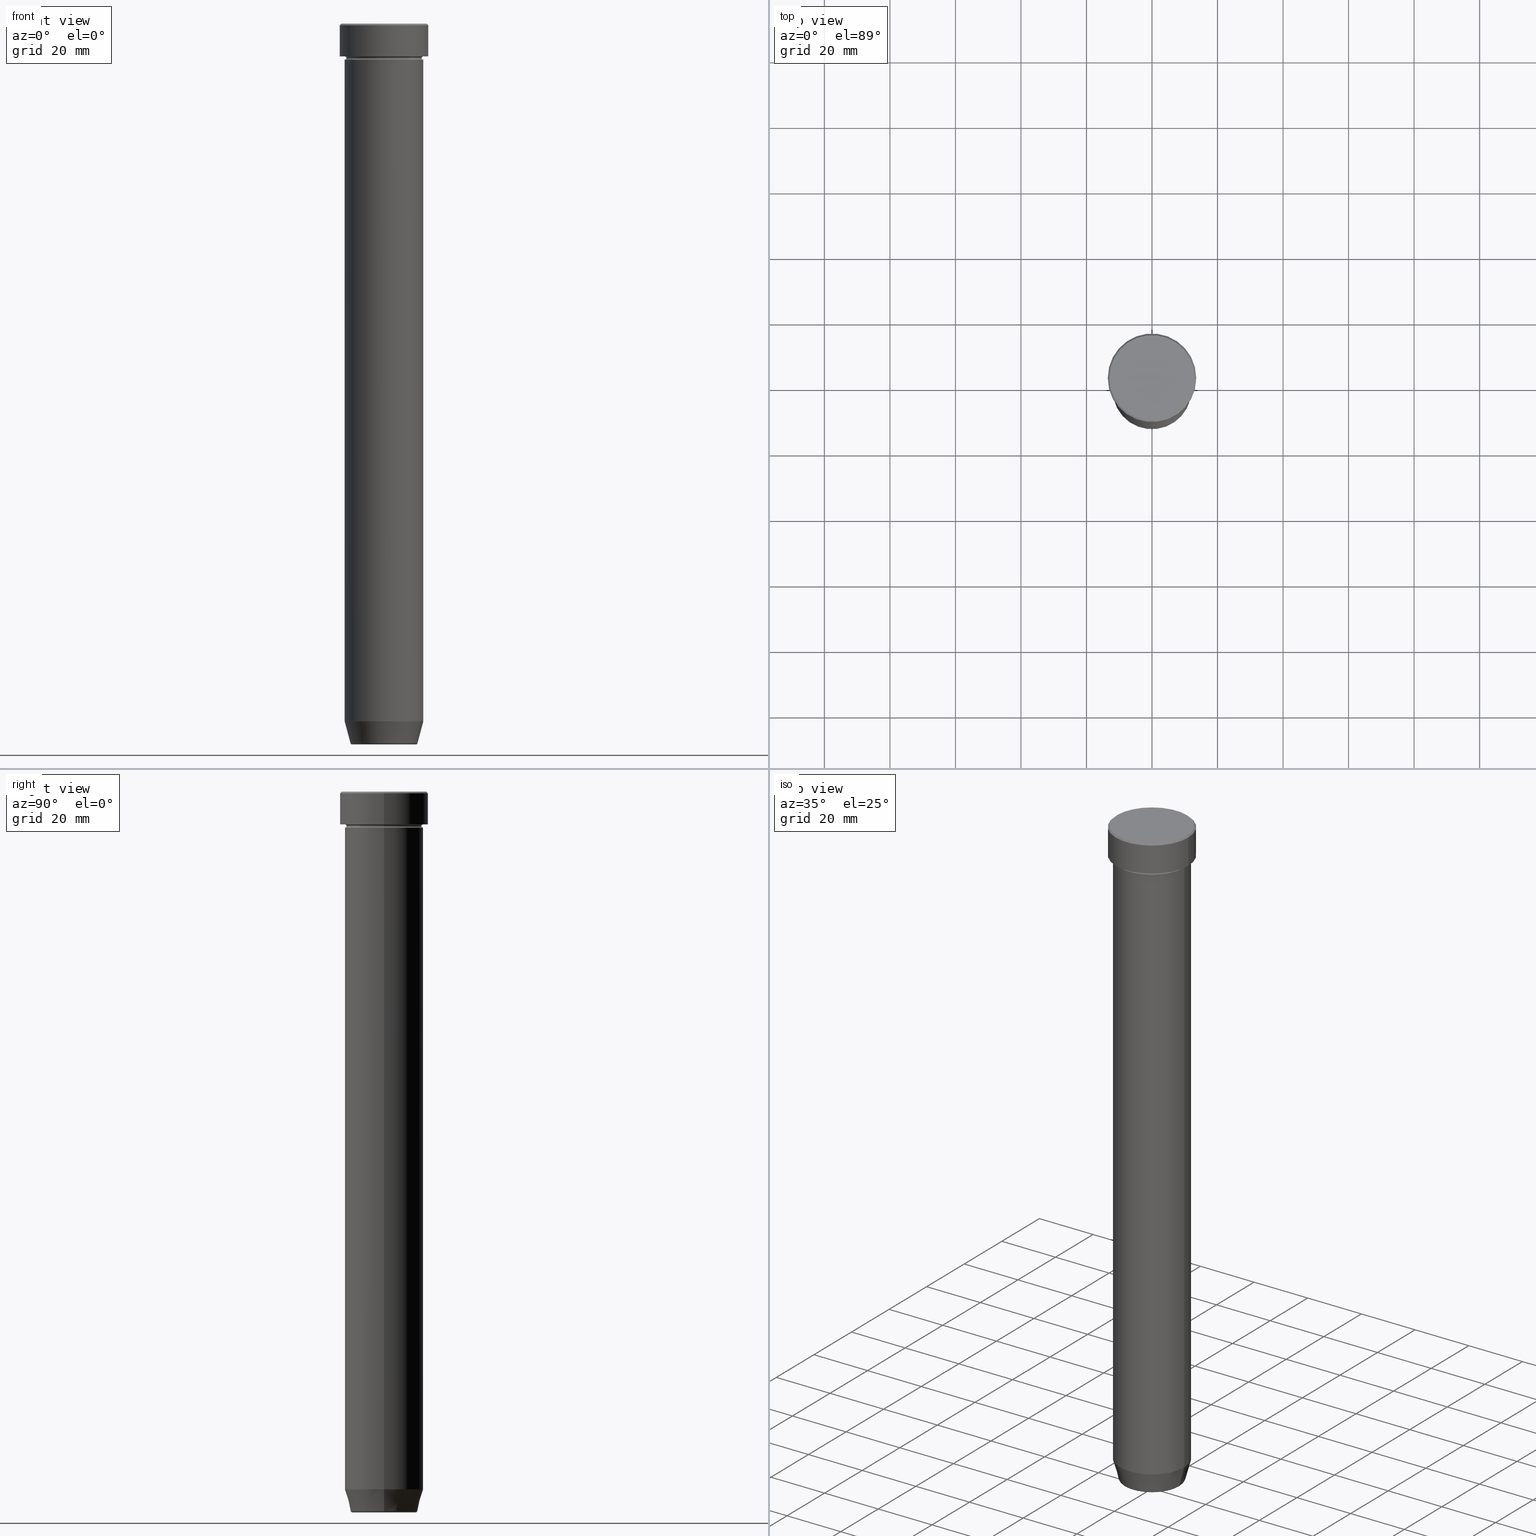
[diagram: canonical four-view strip — front | top / right | iso, engineering-drawing reading convention]
A machine part, canonical four-view strip (front | top / right | iso — engineering-drawing reading convention). The complete STEP part file that produces these views, byte-faithful:
ISO-10303-21;
HEADER;
FILE_DESCRIPTION (( 'STEP AP203' ),
    '1' );
FILE_NAME ('7fe7.STEP',
    '2024-01-02T19:18:45',
    ( '' ),
    ( '' ),
    'SwSTEP 2.0',
    'SolidWorks 2019',
    '' );
FILE_SCHEMA (( 'CONFIG_CONTROL_DESIGN' ));
ENDSEC;

DATA;
#1 = DIRECTION ( 'NONE',  ( 1.000000000000000000, 0.000000000000000000, 0.000000000000000000 ) ) ;
#2 = LOCAL_TIME ( 20, 18, 45.00000000000000000, #33 ) ;
#3 = EDGE_CURVE ( 'NONE', #557, #589, #338, .T. ) ;
#4 = CARTESIAN_POINT ( 'NONE',  ( 0.000000000000000000, 0.000000000000000000, 0.000000000000000000 ) ) ;
#5 = APPROVAL ( #273, 'NEUR�EN�' ) ;
#6 = CIRCLE ( 'NONE', #506, 12.99999999999999645 ) ;
#7 = PLANE ( 'NONE',  #251 ) ;
#8 = EDGE_LOOP ( 'NONE', ( #587, #66, #198, #221 ) ) ;
#9 = EDGE_CURVE ( 'NONE', #399, #486, #432, .T. ) ;
#10 = DIRECTION ( 'NONE',  ( -1.000000000000000000, 0.000000000000000000, 0.000000000000000000 ) ) ;
#11 = CC_DESIGN_APPROVAL ( #5, ( #454 ) ) ;
#12 = CARTESIAN_POINT ( 'NONE',  ( -12.00000000000000000, 0.000000000000000000, -10.49999999999999822 ) ) ;
#13 = CIRCLE ( 'NONE', #351, 12.00000000000000000 ) ;
#14 = CARTESIAN_POINT ( 'NONE',  ( 0.000000000000000000, 0.000000000000000000, -10.49999999999999822 ) ) ;
#15 = CARTESIAN_POINT ( 'NONE',  ( 12.99999999999999645, 1.592040838891558701E-15, 0.000000000000000000 ) ) ;
#16 = VERTEX_POINT ( 'NONE', #71 ) ;
#17 = AXIS2_PLACEMENT_3D ( 'NONE', #525, #55, #421 ) ;
#18 = CARTESIAN_POINT ( 'NONE',  ( 0.000000000000000000, 0.000000000000000000, -27.00000000000000000 ) ) ;
#19 = LINE ( 'NONE', #250, #311 ) ;
#20 = ADVANCED_FACE ( 'NONE', ( #265 ), #444, .T. ) ;
#21 = CONICAL_SURFACE ( 'NONE', #98, 10.12435565298213369, 0.2617993877991502405 ) ;
#22 = CARTESIAN_POINT ( 'NONE',  ( 0.000000000000000000, 0.000000000000000000, 0.000000000000000000 ) ) ;
#23 = ORIENTED_EDGE ( 'NONE', *, *, #150, .T. ) ;
#24 = DIRECTION ( 'NONE',  ( -0.000000000000000000, -0.000000000000000000, 1.000000000000000000 ) ) ;
#25 = DIRECTION ( 'NONE',  ( 0.2588190451025214611, 0.000000000000000000, 0.9659258262890679791 ) ) ;
#26 = AXIS2_PLACEMENT_3D ( 'NONE', #500, #465, #559 ) ;
#27 = ORIENTED_EDGE ( 'NONE', *, *, #433, .T. ) ;
#28 = CARTESIAN_POINT ( 'NONE',  ( 0.000000000000000000, 0.000000000000000000, 0.000000000000000000 ) ) ;
#29 = FACE_OUTER_BOUND ( 'NONE', #467, .T. ) ;
#30 = DIRECTION ( 'NONE',  ( 1.000000000000000000, 0.000000000000000000, 0.000000000000000000 ) ) ;
#31 = EDGE_CURVE ( 'NONE', #478, #272, #513, .T. ) ;
#32 = ORIENTED_EDGE ( 'NONE', *, *, #534, .T. ) ;
#33 = COORDINATED_UNIVERSAL_TIME_OFFSET ( 1, 0, .AHEAD. ) ;
#34 = VERTEX_POINT ( 'NONE', #163 ) ;
#35 = DIRECTION ( 'NONE',  ( -1.000000000000000000, 1.224646799147353454E-16, 0.000000000000000000 ) ) ;
#36 = DIRECTION ( 'NONE',  ( -1.000000000000000000, 0.000000000000000000, 0.000000000000000000 ) ) ;
#37 = DIRECTION ( 'NONE',  ( -0.000000000000000000, -0.000000000000000000, 1.000000000000000000 ) ) ;
#38 = VERTEX_POINT ( 'NONE', #85 ) ;
#39 = ORIENTED_EDGE ( 'NONE', *, *, #150, .F. ) ;
#40 = DIRECTION ( 'NONE',  ( -1.000000000000000000, 1.224646799147353454E-16, 0.000000000000000000 ) ) ;
#41 = ORIENTED_EDGE ( 'NONE', *, *, #459, .F. ) ;
#42 = VECTOR ( 'NONE', #212, 1000.000000000000000 ) ;
#43 = EDGE_CURVE ( 'NONE', #499, #34, #130, .T. ) ;
#44 = CC_DESIGN_APPROVAL ( #416, ( #526 ) ) ;
#45 = SECURITY_CLASSIFICATION_LEVEL ( 'unclassified' ) ;
#46 = DIRECTION ( 'NONE',  ( -1.000000000000000000, 0.000000000000000000, 0.000000000000000000 ) ) ;
#47 = ORIENTED_EDGE ( 'NONE', *, *, #519, .F. ) ;
#48 = EDGE_LOOP ( 'NONE', ( #32, #185, #83, #415 ) ) ;
#49 = DIRECTION ( 'NONE',  ( 1.000000000000000000, 0.000000000000000000, 0.000000000000000000 ) ) ;
#50 = DIRECTION ( 'NONE',  ( 1.000000000000000000, 0.000000000000000000, 0.000000000000000000 ) ) ;
#51 = EDGE_CURVE ( 'NONE', #453, #457, #392, .T. ) ;
#52 = DIRECTION ( 'NONE',  ( 1.000000000000000000, 0.000000000000000000, 0.000000000000000000 ) ) ;
#53 = AXIS2_PLACEMENT_3D ( 'NONE', #446, #219, #172 ) ;
#54 = CARTESIAN_POINT ( 'NONE',  ( 0.000000000000000000, 0.000000000000000000, -27.00000000000000000 ) ) ;
#55 = DIRECTION ( 'NONE',  ( 0.000000000000000000, 0.000000000000000000, -1.000000000000000000 ) ) ;
#56 = DIRECTION ( 'NONE',  ( -0.000000000000000000, -0.000000000000000000, 1.000000000000000000 ) ) ;
#57 = EDGE_CURVE ( 'NONE', #589, #218, #129, .T. ) ;
#58 = ORIENTED_EDGE ( 'NONE', *, *, #51, .F. ) ;
#59 = CARTESIAN_POINT ( 'NONE',  ( 13.50000000000000000, 0.000000000000000000, -0.5000000000000091038 ) ) ;
#60 = VECTOR ( 'NONE', #209, 1000.000000000000000 ) ;
#61 = ORIENTED_EDGE ( 'NONE', *, *, #317, .F. ) ;
#62 = ORIENTED_EDGE ( 'NONE', *, *, #57, .T. ) ;
#63 = CARTESIAN_POINT ( 'NONE',  ( -10.12435565298213369, 1.239875974385398152E-15, -220.0000000000000284 ) ) ;
#64 = DIRECTION ( 'NONE',  ( 1.000000000000000000, 0.000000000000000000, 0.000000000000000000 ) ) ;
#65 = EDGE_CURVE ( 'NONE', #352, #557, #73, .T. ) ;
#66 = ORIENTED_EDGE ( 'NONE', *, *, #75, .T. ) ;
#67 = FACE_OUTER_BOUND ( 'NONE', #334, .T. ) ;
#68 = CARTESIAN_POINT ( 'NONE',  ( 0.000000000000000000, 0.000000000000000000, -11.00000000000000000 ) ) ;
#69 = AXIS2_PLACEMENT_3D ( 'NONE', #484, #401, #435 ) ;
#70 = CYLINDRICAL_SURFACE ( 'NONE', #279, 13.50000000000000000 ) ;
#71 = CARTESIAN_POINT ( 'NONE',  ( 13.50000000000000000, 0.000000000000000000, -10.00000000000000000 ) ) ;
#72 = APPROVAL_PERSON_ORGANIZATION ( #542, #5, #315 ) ;
#73 = CIRCLE ( 'NONE', #228, 11.50000000000000000 ) ;
#74 = DIRECTION ( 'NONE',  ( -1.000000000000000000, 0.000000000000000000, 0.000000000000000000 ) ) ;
#75 = EDGE_CURVE ( 'NONE', #103, #499, #569, .T. ) ;
#76 = DIRECTION ( 'NONE',  ( 1.000000000000000000, 0.000000000000000000, 0.000000000000000000 ) ) ;
#77 = ORIENTED_EDGE ( 'NONE', *, *, #459, .T. ) ;
#78 = APPLICATION_PROTOCOL_DEFINITION ( 'international standard', 'config_control_design', 1994, #80 ) ;
#79 = DIRECTION ( 'NONE',  ( 1.224646799147353207E-16, 1.000000000000000000, 0.000000000000000000 ) ) ;
#80 = APPLICATION_CONTEXT ( 'configuration controlled 3d designs of mechanical parts and assemblies' ) ;
#81 = EDGE_LOOP ( 'NONE', ( #560, #596, #117, #541 ) ) ;
#82 = PERSON_AND_ORGANIZATION_ROLE ( 'design_supplier' ) ;
#83 = ORIENTED_EDGE ( 'NONE', *, *, #31, .F. ) ;
#84 = CARTESIAN_POINT ( 'NONE',  ( 0.000000000000000000, 0.000000000000000000, -10.00000000000000000 ) ) ;
#85 = CARTESIAN_POINT ( 'NONE',  ( -12.99999999999999645, 0.000000000000000000, 0.000000000000000000 ) ) ;
#86 = ORIENTED_EDGE ( 'NONE', *, *, #65, .T. ) ;
#87 = DATE_TIME_ROLE ( 'classification_date' ) ;
#88 = MANIFOLD_SOLID_BREP ( 'Zaoblit4', #300 ) ;
#89 = AXIS2_PLACEMENT_3D ( 'NONE', #68, #213, #167 ) ;
#90 = PERSON_AND_ORGANIZATION ( #381, #584 ) ;
#91 = EDGE_CURVE ( 'NONE', #272, #478, #13, .T. ) ;
#92 = ORIENTED_EDGE ( 'NONE', *, *, #424, .F. ) ;
#93 = DIRECTION ( 'NONE',  ( -0.000000000000000000, -0.000000000000000000, 1.000000000000000000 ) ) ;
#94 = CONICAL_SURFACE ( 'NONE', #426, 12.99999999999999645, 0.7853981633974431720 ) ;
#95 = AXIS2_PLACEMENT_3D ( 'NONE', #152, #147, #10 ) ;
#96 = LINE ( 'NONE', #329, #108 ) ;
#97 = CIRCLE ( 'NONE', #390, 9.740692158992656502 ) ;
#98 = AXIS2_PLACEMENT_3D ( 'NONE', #216, #170, #348 ) ;
#99 = ORIENTED_EDGE ( 'NONE', *, *, #31, .T. ) ;
#100 = DATE_AND_TIME ( #362, #522 ) ;
#101 = DIRECTION ( 'NONE',  ( -1.000000000000000000, -1.224646799147353454E-16, 0.000000000000000000 ) ) ;
#102 = CC_DESIGN_PERSON_AND_ORGANIZATION_ASSIGNMENT ( #266, #585, ( #526 ) ) ;
#103 = VERTEX_POINT ( 'NONE', #230 ) ;
#104 = AXIS2_PLACEMENT_3D ( 'NONE', #443, #24, #582 ) ;
#105 = CARTESIAN_POINT ( 'NONE',  ( 0.000000000000000000, 0.000000000000000000, -9.999999999999998224 ) ) ;
#106 = CALENDAR_DATE ( 2024, 2, 1 ) ;
#107 = DIRECTION ( 'NONE',  ( 1.000000000000000000, 0.000000000000000000, 0.000000000000000000 ) ) ;
#108 = VECTOR ( 'NONE', #380, 1000.000000000000000 ) ;
#109 = AXIS2_PLACEMENT_3D ( 'NONE', #419, #151, #1 ) ;
#110 = DATE_AND_TIME ( #106, #592 ) ;
#111 = DIRECTION ( 'NONE',  ( -0.000000000000000000, -0.000000000000000000, 1.000000000000000000 ) ) ;
#112 = AXIS2_PLACEMENT_3D ( 'NONE', #527, #396, #449 ) ;
#113 = ADVANCED_FACE ( 'NONE', ( #417 ), #583, .T. ) ;
#114 = DIRECTION ( 'NONE',  ( -0.000000000000000000, -0.000000000000000000, 1.000000000000000000 ) ) ;
#115 = AXIS2_PLACEMENT_3D ( 'NONE', #549, #138, #40 ) ;
#116 = APPROVAL_PERSON_ORGANIZATION ( #203, #416, #573 ) ;
#117 = ORIENTED_EDGE ( 'NONE', *, *, #57, .F. ) ;
#118 = EDGE_CURVE ( 'NONE', #557, #272, #536, .T. ) ;
#119 = ORIENTED_EDGE ( 'NONE', *, *, #292, .F. ) ;
#120 = DIRECTION ( 'NONE',  ( 0.000000000000000000, 0.000000000000000000, -1.000000000000000000 ) ) ;
#121 = EDGE_LOOP ( 'NONE', ( #27, #175, #41, #577 ) ) ;
#122 = CARTESIAN_POINT ( 'NONE',  ( -12.00000000000000000, 0.000000000000000000, -9.999999999999998224 ) ) ;
#123 = DIRECTION ( 'NONE',  ( 0.000000000000000000, 0.000000000000000000, -1.000000000000000000 ) ) ;
#124 = VECTOR ( 'NONE', #179, 1000.000000000000000 ) ;
#125 = PRODUCT ( '7fe7', '7fe7', '', ( #581 ) ) ;
#126 = AXIS2_PLACEMENT_3D ( 'NONE', #353, #120, #166 ) ;
#127 = ADVANCED_FACE ( 'NONE', ( #312 ), #452, .F. ) ;
#128 = LOCAL_TIME ( 20, 18, 45.00000000000000000, #403 ) ;
#129 = CIRCLE ( 'NONE', #442, 12.00000000000000000 ) ;
#130 = LINE ( 'NONE', #395, #504 ) ;
#131 = ORIENTED_EDGE ( 'NONE', *, *, #184, .F. ) ;
#132 = CARTESIAN_POINT ( 'NONE',  ( 12.00000000000000000, 1.469576158976823947E-15, -10.49999999999999822 ) ) ;
#133 = DIRECTION ( 'NONE',  ( 0.000000000000000000, -0.000000000000000000, 1.000000000000000000 ) ) ;
#134 = TOROIDAL_SURFACE ( 'NONE', #473, 12.00000000000000000, 0.5000000000000000000 ) ;
#135 = EDGE_LOOP ( 'NONE', ( #404, #437, #159, #99 ) ) ;
#136 = ORIENTED_EDGE ( 'NONE', *, *, #424, .T. ) ;
#137 = DIRECTION ( 'NONE',  ( 1.000000000000000000, 0.000000000000000000, 0.000000000000000000 ) ) ;
#138 = DIRECTION ( 'NONE',  ( 1.224646799147353207E-16, 1.000000000000000000, 0.000000000000000000 ) ) ;
#139 = EDGE_CURVE ( 'NONE', #553, #478, #409, .T. ) ;
#140 = CIRCLE ( 'NONE', #182, 0.5000000000000004441 ) ;
#141 = ORIENTED_EDGE ( 'NONE', *, *, #215, .T. ) ;
#142 = AXIS2_PLACEMENT_3D ( 'NONE', #461, #93, #366 ) ;
#143 = CARTESIAN_POINT ( 'NONE',  ( -12.00000000000000000, 1.469576158976823947E-15, 0.000000000000000000 ) ) ;
#144 = CC_DESIGN_PERSON_AND_ORGANIZATION_ASSIGNMENT ( #298, #384, ( #125 ) ) ;
#145 = DIRECTION ( 'NONE',  ( -0.000000000000000000, -0.000000000000000000, 1.000000000000000000 ) ) ;
#146 = CARTESIAN_POINT ( 'NONE',  ( 12.00000000000000000, 0.000000000000000000, -11.00000000000000000 ) ) ;
#147 = DIRECTION ( 'NONE',  ( -0.000000000000000000, -0.000000000000000000, 1.000000000000000000 ) ) ;
#148 = CYLINDRICAL_SURFACE ( 'NONE', #517, 13.50000000000000000 ) ;
#149 = CARTESIAN_POINT ( 'NONE',  ( 0.000000000000000000, 0.000000000000000000, -10.49999999999999822 ) ) ;
#150 = EDGE_CURVE ( 'NONE', #450, #103, #190, .T. ) ;
#151 = DIRECTION ( 'NONE',  ( -0.000000000000000000, -0.000000000000000000, 1.000000000000000000 ) ) ;
#152 = CARTESIAN_POINT ( 'NONE',  ( 0.000000000000000000, 0.000000000000000000, -219.6294095225512706 ) ) ;
#153 = ORIENTED_EDGE ( 'NONE', *, *, #284, .T. ) ;
#154 = EDGE_LOOP ( 'NONE', ( #410, #153 ) ) ;
#155 = APPROVAL_STATUS ( 'not_yet_approved' ) ;
#156 = VECTOR ( 'NONE', #593, 1000.000000000000000 ) ;
#157 = EDGE_CURVE ( 'NONE', #352, #478, #330, .T. ) ;
#158 = CIRCLE ( 'NONE', #319, 13.50000000000000000 ) ;
#159 = ORIENTED_EDGE ( 'NONE', *, *, #157, .T. ) ;
#160 = EDGE_LOOP ( 'NONE', ( #92, #289 ) ) ;
#161 = CARTESIAN_POINT ( 'NONE',  ( 0.000000000000000000, 0.000000000000000000, -27.00000000000000000 ) ) ;
#162 = CARTESIAN_POINT ( 'NONE',  ( 12.00000000000000000, 1.469576158976823947E-15, -9.999999999999998224 ) ) ;
#163 = CARTESIAN_POINT ( 'NONE',  ( 12.00000000000000000, 0.000000000000000000, -213.0000000000000284 ) ) ;
#164 = DIRECTION ( 'NONE',  ( 1.000000000000000000, 0.000000000000000000, 0.000000000000000000 ) ) ;
#165 = ORIENTED_EDGE ( 'NONE', *, *, #389, .F. ) ;
#166 = DIRECTION ( 'NONE',  ( 1.000000000000000000, 0.000000000000000000, 0.000000000000000000 ) ) ;
#167 = DIRECTION ( 'NONE',  ( 1.000000000000000000, 0.000000000000000000, 0.000000000000000000 ) ) ;
#168 = EDGE_CURVE ( 'NONE', #202, #450, #97, .T. ) ;
#169 = ORIENTED_EDGE ( 'NONE', *, *, #168, .T. ) ;
#170 = DIRECTION ( 'NONE',  ( -0.000000000000000000, -0.000000000000000000, 1.000000000000000000 ) ) ;
#171 = ORIENTED_EDGE ( 'NONE', *, *, #372, .F. ) ;
#172 = DIRECTION ( 'NONE',  ( 0.000000000000000000, 0.000000000000000000, -1.000000000000000000 ) ) ;
#173 = AXIS2_PLACEMENT_3D ( 'NONE', #299, #492, #598 ) ;
#174 = UNCERTAINTY_MEASURE_WITH_UNIT (LENGTH_MEASURE( 1.000000000000000082E-05 ), #445, 'distance_accuracy_value', 'NONE');
#175 = ORIENTED_EDGE ( 'NONE', *, *, #570, .T. ) ;
#176 = ORIENTED_EDGE ( 'NONE', *, *, #433, .F. ) ;
#177 = EDGE_CURVE ( 'NONE', #450, #202, #297, .T. ) ;
#178 = AXIS2_PLACEMENT_3D ( 'NONE', #515, #56, #278 ) ;
#179 = DIRECTION ( 'NONE',  ( -0.000000000000000000, -0.000000000000000000, 1.000000000000000000 ) ) ;
#180 = CARTESIAN_POINT ( 'NONE',  ( 0.000000000000000000, 0.000000000000000000, -219.6294095225512706 ) ) ;
#181 = DIRECTION ( 'NONE',  ( 1.000000000000000000, 0.000000000000000000, 0.000000000000000000 ) ) ;
#182 = AXIS2_PLACEMENT_3D ( 'NONE', #350, #532, #296 ) ;
#184 = EDGE_CURVE ( 'NONE', #471, #486, #376, .T. ) ;
#183 = DATE_TIME_ROLE ( 'creation_date' ) ;
#185 = ORIENTED_EDGE ( 'NONE', *, *, #317, .T. ) ;
#186 = CARTESIAN_POINT ( 'NONE',  ( 0.000000000000000000, 0.000000000000000000, 0.000000000000000000 ) ) ;
#187 = VERTEX_POINT ( 'NONE', #578 ) ;
#188 = APPROVAL_ROLE ( '' ) ;
#189 = CIRCLE ( 'NONE', #307, 12.00000000000000000 ) ;
#190 = CIRCLE ( 'NONE', #518, 0.5000000000000004441 ) ;
#191 = DIRECTION ( 'NONE',  ( -0.000000000000000000, -0.000000000000000000, 1.000000000000000000 ) ) ;
#192 = VECTOR ( 'NONE', #574, 1000.000000000000114 ) ;
#193 = DIRECTION ( 'NONE',  ( -1.000000000000000000, 0.000000000000000000, 0.000000000000000000 ) ) ;
#194 = DIRECTION ( 'NONE',  ( 0.000000000000000000, 0.000000000000000000, -1.000000000000000000 ) ) ;
#195 = AXIS2_PLACEMENT_3D ( 'NONE', #132, #407, #101 ) ;
#196 = ADVANCED_FACE ( 'NONE', ( #247 ), #463, .T. ) ;
#197 = CARTESIAN_POINT ( 'NONE',  ( -13.50000000000000000, 1.653273178848926867E-15, -0.5000000000000091038 ) ) ;
#198 = ORIENTED_EDGE ( 'NONE', *, *, #43, .T. ) ;
#199 = FACE_OUTER_BOUND ( 'NONE', #364, .T. ) ;
#200 = AXIS2_PLACEMENT_3D ( 'NONE', #12, #382, #480 ) ;
#201 = EDGE_CURVE ( 'NONE', #16, #486, #393, .T. ) ;
#202 = VERTEX_POINT ( 'NONE', #440 ) ;
#203 = PERSON_AND_ORGANIZATION ( #381, #584 ) ;
#204 = ORIENTED_EDGE ( 'NONE', *, *, #235, .F. ) ;
#205 = ORIENTED_EDGE ( 'NONE', *, *, #519, .T. ) ;
#206 = CALENDAR_DATE ( 2024, 2, 1 ) ;
#207 = PRODUCT_RELATED_PRODUCT_CATEGORY ( 'detail', '', ( #125 ) ) ;
#208 = TOROIDAL_SURFACE ( 'NONE', #240, 12.00000000000000000, 0.5000000000000000000 ) ;
#209 = DIRECTION ( 'NONE',  ( -0.000000000000000000, -0.000000000000000000, 1.000000000000000000 ) ) ;
#210 = AXIS2_PLACEMENT_3D ( 'NONE', #523, #114, #107 ) ;
#211 = DIRECTION ( 'NONE',  ( 1.000000000000000000, 0.000000000000000000, 0.000000000000000000 ) ) ;
#212 = DIRECTION ( 'NONE',  ( -0.000000000000000000, -0.000000000000000000, 1.000000000000000000 ) ) ;
#213 = DIRECTION ( 'NONE',  ( -0.000000000000000000, -0.000000000000000000, 1.000000000000000000 ) ) ;
#214 = EDGE_LOOP ( 'NONE', ( #425, #358, #333, #342 ) ) ;
#215 = EDGE_CURVE ( 'NONE', #505, #471, #19, .T. ) ;
#216 = CARTESIAN_POINT ( 'NONE',  ( 0.000000000000000000, 0.000000000000000000, -220.0000000000000284 ) ) ;
#217 = CARTESIAN_POINT ( 'NONE',  ( 0.000000000000000000, 0.000000000000000000, -27.00000000000000000 ) ) ;
#218 = VERTEX_POINT ( 'NONE', #162 ) ;
#219 = DIRECTION ( 'NONE',  ( 0.000000000000000000, -1.000000000000000000, 0.000000000000000000 ) ) ;
#220 = ADVANCED_FACE ( 'NONE', ( #490 ), #70, .T. ) ;
#221 = ORIENTED_EDGE ( 'NONE', *, *, #243, .F. ) ;
#222 = CARTESIAN_POINT ( 'NONE',  ( 11.50000000000000000, 0.000000000000000000, -10.49999999999999822 ) ) ;
#223 = EDGE_LOOP ( 'NONE', ( #377, #580, #131, #165 ) ) ;
#224 = DIRECTION ( 'NONE',  ( 0.000000000000000000, 0.000000000000000000, -1.000000000000000000 ) ) ;
#225 = COORDINATED_UNIVERSAL_TIME_OFFSET ( 1, 0, .AHEAD. ) ;
#226 = AXIS2_PLACEMENT_3D ( 'NONE', #149, #451, #488 ) ;
#227 = ORIENTED_EDGE ( 'NONE', *, *, #379, .T. ) ;
#228 = AXIS2_PLACEMENT_3D ( 'NONE', #306, #340, #76 ) ;
#229 = FACE_OUTER_BOUND ( 'NONE', #455, .T. ) ;
#230 = CARTESIAN_POINT ( 'NONE',  ( -10.22365507213718416, 1.360806402472382153E-15, -219.6294095225512706 ) ) ;
#231 = CIRCLE ( 'NONE', #95, 10.22365507213718416 ) ;
#232 = DIRECTION ( 'NONE',  ( -0.000000000000000000, -0.000000000000000000, 1.000000000000000000 ) ) ;
#233 = FACE_BOUND ( 'NONE', #256, .T. ) ;
#234 = AXIS2_PLACEMENT_3D ( 'NONE', #217, #347, #402 ) ;
#235 = EDGE_CURVE ( 'NONE', #202, #499, #140, .T. ) ;
#236 = PERSON_AND_ORGANIZATION ( #381, #584 ) ;
#237 = FACE_OUTER_BOUND ( 'NONE', #160, .T. ) ;
#238 = CC_DESIGN_DATE_AND_TIME_ASSIGNMENT ( #308, #87, ( #331 ) ) ;
#239 = EDGE_LOOP ( 'NONE', ( #510, #524 ) ) ;
#240 = AXIS2_PLACEMENT_3D ( 'NONE', #411, #548, #267 ) ;
#241 = CARTESIAN_POINT ( 'NONE',  ( 0.000000000000000000, 0.000000000000000000, 0.000000000000000000 ) ) ;
#242 = APPLICATION_CONTEXT ( 'configuration controlled 3d designs of mechanical parts and assemblies' ) ;
#243 = EDGE_CURVE ( 'NONE', #187, #34, #422, .T. ) ;
#244 = ORIENTED_EDGE ( 'NONE', *, *, #235, .T. ) ;
#245 = CARTESIAN_POINT ( 'NONE',  ( 0.000000000000000000, 0.000000000000000000, -213.0000000000000284 ) ) ;
#246 =( NAMED_UNIT ( * ) PLANE_ANGLE_UNIT ( ) SI_UNIT ( $, .RADIAN. ) );
#247 = FACE_OUTER_BOUND ( 'NONE', #303, .T. ) ;
#248 = ORIENTED_EDGE ( 'NONE', *, *, #157, .F. ) ;
#249 = AXIS2_PLACEMENT_3D ( 'NONE', #375, #561, #374 ) ;
#250 = CARTESIAN_POINT ( 'NONE',  ( -13.50000000000000000, 1.653273178848926867E-15, 0.000000000000000000 ) ) ;
#251 = AXIS2_PLACEMENT_3D ( 'NONE', #514, #194, #280 ) ;
#252 = ORIENTED_EDGE ( 'NONE', *, *, #325, .T. ) ;
#253 = CARTESIAN_POINT ( 'NONE',  ( 0.000000000000000000, 0.000000000000000000, 0.000000000000000000 ) ) ;
#254 = APPROVAL_PERSON_ORGANIZATION ( #236, #258, #188 ) ;
#255 = ADVANCED_FACE ( 'NONE', ( #537 ), #529, .F. ) ;
#256 = EDGE_LOOP ( 'NONE', ( #62, #309 ) ) ;
#257 = DIRECTION ( 'NONE',  ( 0.000000000000000000, 0.000000000000000000, -1.000000000000000000 ) ) ;
#258 = APPROVAL ( #468, 'NEUR�EN�' ) ;
#259 = CIRCLE ( 'NONE', #195, 0.5000000000000004441 ) ;
#260 = DIRECTION ( 'NONE',  ( -1.000000000000000000, 0.000000000000000000, -0.000000000000000000 ) ) ;
#261 = CC_DESIGN_DATE_AND_TIME_ASSIGNMENT ( #100, #183, ( #526 ) ) ;
#262 = ORIENTED_EDGE ( 'NONE', *, *, #168, .F. ) ;
#263 = PERSON_AND_ORGANIZATION_ROLE ( 'classification_officer' ) ;
#264 = ORIENTED_EDGE ( 'NONE', *, *, #177, .T. ) ;
#265 = FACE_OUTER_BOUND ( 'NONE', #154, .T. ) ;
#266 = PERSON_AND_ORGANIZATION ( #381, #584 ) ;
#267 = DIRECTION ( 'NONE',  ( 1.000000000000000000, 0.000000000000000000, 0.000000000000000000 ) ) ;
#268 = CARTESIAN_POINT ( 'NONE',  ( -12.00000000000000000, 1.469576158976823947E-15, -11.00000000000000000 ) ) ;
#269 = PERSON_AND_ORGANIZATION_ROLE ( 'creator' ) ;
#270 = ADVANCED_FACE ( 'NONE', ( #29 ), #508, .T. ) ;
#271 = AXIS2_PLACEMENT_3D ( 'NONE', #180, #145, #562 ) ;
#272 = VERTEX_POINT ( 'NONE', #268 ) ;
#273 = APPROVAL_STATUS ( 'not_yet_approved' ) ;
#274 = LINE ( 'NONE', #554, #436 ) ;
#275 = EDGE_LOOP ( 'NONE', ( #77, #252, #58, #171 ) ) ;
#276 = CARTESIAN_POINT ( 'NONE',  ( -13.50000000000000000, 1.653273178848926867E-15, -10.00000000000000000 ) ) ;
#277 = ADVANCED_FACE ( 'NONE', ( #229 ), #555, .F. ) ;
#278 = DIRECTION ( 'NONE',  ( 1.000000000000000000, 0.000000000000000000, 0.000000000000000000 ) ) ;
#279 = AXIS2_PLACEMENT_3D ( 'NONE', #344, #291, #164 ) ;
#280 = DIRECTION ( 'NONE',  ( -1.000000000000000000, 0.000000000000000000, -0.000000000000000000 ) ) ;
#281 = SHAPE_DEFINITION_REPRESENTATION ( #460, #556 ) ;
#282 = MANIFOLD_SOLID_BREP ( 'Zkosen�1', #528 ) ;
#283 = FACE_OUTER_BOUND ( 'NONE', #48, .T. ) ;
#284 = EDGE_CURVE ( 'NONE', #399, #38, #6, .T. ) ;
#285 = ORIENTED_EDGE ( 'NONE', *, *, #243, .T. ) ;
#286 = ORIENTED_EDGE ( 'NONE', *, *, #118, .T. ) ;
#287 = PLANE ( 'NONE',  #17 ) ;
#288 = CARTESIAN_POINT ( 'NONE',  ( -11.50000000000000000, 1.438959988998139963E-15, -10.49999999999999822 ) ) ;
#289 = ORIENTED_EDGE ( 'NONE', *, *, #302, .F. ) ;
#290 = ORIENTED_EDGE ( 'NONE', *, *, #51, .T. ) ;
#291 = DIRECTION ( 'NONE',  ( -0.000000000000000000, -0.000000000000000000, 1.000000000000000000 ) ) ;
#292 = EDGE_CURVE ( 'NONE', #352, #218, #259, .T. ) ;
#293 = EDGE_LOOP ( 'NONE', ( #597, #365, #313, #227 ) ) ;
#294 = FACE_OUTER_BOUND ( 'NONE', #121, .T. ) ;
#295 = AXIS2_PLACEMENT_3D ( 'NONE', #241, #387, #531 ) ;
#296 = DIRECTION ( 'NONE',  ( 0.000000000000000000, 0.000000000000000000, -1.000000000000000000 ) ) ;
#297 = CIRCLE ( 'NONE', #69, 9.740692158992656502 ) ;
#298 = PERSON_AND_ORGANIZATION ( #381, #584 ) ;
#299 = CARTESIAN_POINT ( 'NONE',  ( 0.000000000000000000, 0.000000000000000000, -10.49999999999999822 ) ) ;
#300 = CLOSED_SHELL ( 'NONE', ( #509, #564, #558, #594, #349, #113, #277, #196 ) ) ;
#301 = CARTESIAN_POINT ( 'NONE',  ( -9.740692158992656502, 1.192890747399007864E-15, -219.5000000000000284 ) ) ;
#302 = EDGE_CURVE ( 'NONE', #505, #16, #533, .T. ) ;
#303 = EDGE_LOOP ( 'NONE', ( #39, #262, #244, #494 ) ) ;
#304 = ORIENTED_EDGE ( 'NONE', *, *, #3, .T. ) ;
#305 = CIRCLE ( 'NONE', #355, 13.50000000000000000 ) ;
#306 = CARTESIAN_POINT ( 'NONE',  ( 0.000000000000000000, 0.000000000000000000, -10.49999999999999822 ) ) ;
#307 = AXIS2_PLACEMENT_3D ( 'NONE', #245, #475, #327 ) ;
#308 = DATE_AND_TIME ( #545, #128 ) ;
#309 = ORIENTED_EDGE ( 'NONE', *, *, #501, .T. ) ;
#310 = CARTESIAN_POINT ( 'NONE',  ( 0.000000000000000000, 0.000000000000000000, 0.000000000000000000 ) ) ;
#311 = VECTOR ( 'NONE', #388, 1000.000000000000000 ) ;
#312 = FACE_OUTER_BOUND ( 'NONE', #81, .T. ) ;
#313 = ORIENTED_EDGE ( 'NONE', *, *, #201, .T. ) ;
#314 = CARTESIAN_POINT ( 'NONE',  ( 0.000000000000000000, 0.000000000000000000, -0.5000000000000091038 ) ) ;
#315 = APPROVAL_ROLE ( '' ) ;
#316 = AXIS2_PLACEMENT_3D ( 'NONE', #84, #320, #137 ) ;
#317 = EDGE_CURVE ( 'NONE', #383, #272, #456, .T. ) ;
#318 = CARTESIAN_POINT ( 'NONE',  ( -12.00000000000000000, 1.469576158976823947E-15, -27.00000000000000000 ) ) ;
#319 = AXIS2_PLACEMENT_3D ( 'NONE', #474, #520, #52 ) ;
#320 = DIRECTION ( 'NONE',  ( -0.000000000000000000, -0.000000000000000000, 1.000000000000000000 ) ) ;
#321 = AXIS2_PLACEMENT_3D ( 'NONE', #18, #489, #211 ) ;
#322 = ORIENTED_EDGE ( 'NONE', *, *, #91, .F. ) ;
#323 = FACE_OUTER_BOUND ( 'NONE', #502, .T. ) ;
#324 = DIRECTION ( 'NONE',  ( 1.000000000000000000, 0.000000000000000000, 0.000000000000000000 ) ) ;
#325 = EDGE_CURVE ( 'NONE', #187, #457, #274, .T. ) ;
#326 = EDGE_LOOP ( 'NONE', ( #546, #286, #448, #248 ) ) ;
#327 = DIRECTION ( 'NONE',  ( 1.000000000000000000, 0.000000000000000000, 0.000000000000000000 ) ) ;
#328 = CIRCLE ( 'NONE', #566, 12.00000000000000000 ) ;
#329 = CARTESIAN_POINT ( 'NONE',  ( -12.99999999999999645, 0.000000000000000000, 0.000000000000000000 ) ) ;
#330 = CIRCLE ( 'NONE', #53, 0.5000000000000004441 ) ;
#331 = SECURITY_CLASSIFICATION ( '', '', #45 ) ;
#332 = CARTESIAN_POINT ( 'NONE',  ( 12.99999999999999645, 1.622657008870242882E-15, 0.000000000000000000 ) ) ;
#333 = ORIENTED_EDGE ( 'NONE', *, *, #389, .T. ) ;
#334 = EDGE_LOOP ( 'NONE', ( #290, #205 ) ) ;
#335 = COORDINATED_UNIVERSAL_TIME_OFFSET ( 1, 0, .AHEAD. ) ;
#336 = LOCAL_TIME ( 20, 18, 45.00000000000000000, #335 ) ;
#337 =( NAMED_UNIT ( * ) SI_UNIT ( $, .STERADIAN. ) SOLID_ANGLE_UNIT ( ) );
#338 = CIRCLE ( 'NONE', #200, 0.5000000000000004441 ) ;
#339 = DIRECTION ( 'NONE',  ( -0.000000000000000000, -0.000000000000000000, 1.000000000000000000 ) ) ;
#340 = DIRECTION ( 'NONE',  ( -0.000000000000000000, -0.000000000000000000, 1.000000000000000000 ) ) ;
#341 = ADVANCED_FACE ( 'NONE', ( #591 ), #94, .T. ) ;
#342 = ORIENTED_EDGE ( 'NONE', *, *, #379, .F. ) ;
#343 = CYLINDRICAL_SURFACE ( 'NONE', #576, 12.00000000000000000 ) ;
#344 = CARTESIAN_POINT ( 'NONE',  ( 0.000000000000000000, 0.000000000000000000, 0.000000000000000000 ) ) ;
#345 = CARTESIAN_POINT ( 'NONE',  ( 12.00000000000000000, 0.000000000000000000, -27.00000000000000000 ) ) ;
#346 = CARTESIAN_POINT ( 'NONE',  ( 0.000000000000000000, 0.000000000000000000, -219.5000000000000284 ) ) ;
#347 = DIRECTION ( 'NONE',  ( -0.000000000000000000, -0.000000000000000000, 1.000000000000000000 ) ) ;
#348 = DIRECTION ( 'NONE',  ( 1.000000000000000000, 0.000000000000000000, 0.000000000000000000 ) ) ;
#349 = ADVANCED_FACE ( 'NONE', ( #512 ), #469, .T. ) ;
#350 = CARTESIAN_POINT ( 'NONE',  ( 9.740692158992656502, 0.000000000000000000, -219.5000000000000284 ) ) ;
#351 = AXIS2_PLACEMENT_3D ( 'NONE', #588, #470, #50 ) ;
#352 = VERTEX_POINT ( 'NONE', #222 ) ;
#353 = CARTESIAN_POINT ( 'NONE',  ( 0.000000000000000000, 0.000000000000000000, -0.5000000000000091038 ) ) ;
#354 = LINE ( 'NONE', #503, #156 ) ;
#355 = AXIS2_PLACEMENT_3D ( 'NONE', #314, #224, #181 ) ;
#356 = TOROIDAL_SURFACE ( 'NONE', #109, 9.740692158992656502, 0.5000000000000000000 ) ;
#357 = DATE_AND_TIME ( #206, #336 ) ;
#358 = ORIENTED_EDGE ( 'NONE', *, *, #493, .F. ) ;
#359 = DIRECTION ( 'NONE',  ( -0.000000000000000000, -0.000000000000000000, 1.000000000000000000 ) ) ;
#360 = AXIS2_PLACEMENT_3D ( 'NONE', #161, #257, #260 ) ;
#361 = ADVANCED_FACE ( 'NONE', ( #405 ), #208, .F. ) ;
#362 = CALENDAR_DATE ( 2024, 2, 1 ) ;
#363 = DIRECTION ( 'NONE',  ( 1.000000000000000000, 0.000000000000000000, 0.000000000000000000 ) ) ;
#364 = EDGE_LOOP ( 'NONE', ( #136, #141, #530, #429 ) ) ;
#365 = ORIENTED_EDGE ( 'NONE', *, *, #302, .T. ) ;
#366 = DIRECTION ( 'NONE',  ( 1.000000000000000000, 0.000000000000000000, 0.000000000000000000 ) ) ;
#367 = CIRCLE ( 'NONE', #210, 12.99999999999999645 ) ;
#368 = EDGE_LOOP ( 'NONE', ( #552, #285, #413, #47 ) ) ;
#369 = COORDINATED_UNIVERSAL_TIME_OFFSET ( 1, 0, .AHEAD. ) ;
#370 = AXIS2_PLACEMENT_3D ( 'NONE', #599, #191, #324 ) ;
#371 = CARTESIAN_POINT ( 'NONE',  ( -12.00000000000000000, 1.469576158976823947E-15, -27.00000000000000000 ) ) ;
#372 = EDGE_CURVE ( 'NONE', #34, #453, #354, .T. ) ;
#373 = DIRECTION ( 'NONE',  ( 0.000000000000000000, 0.000000000000000000, -1.000000000000000000 ) ) ;
#374 = DIRECTION ( 'NONE',  ( 1.000000000000000000, 0.000000000000000000, 0.000000000000000000 ) ) ;
#375 = CARTESIAN_POINT ( 'NONE',  ( 0.000000000000000000, 0.000000000000000000, -10.49999999999999822 ) ) ;
#376 = CIRCLE ( 'NONE', #126, 13.50000000000000000 ) ;
#377 = ORIENTED_EDGE ( 'NONE', *, *, #284, .F. ) ;
#378 = AXIS2_PLACEMENT_3D ( 'NONE', #253, #535, #74 ) ;
#379 = EDGE_CURVE ( 'NONE', #486, #471, #305, .T. ) ;
#380 = DIRECTION ( 'NONE',  ( -0.7071067811865439090, 0.000000000000000000, -0.7071067811865512365 ) ) ;
#381 = PERSON ( 'NEUR�EN�', 'NEUR�EN�', 'NEUR�EN�', ('NEUR�EN�'), ('NEUR�EN�'), ('NEUR�EN�') ) ;
#382 = DIRECTION ( 'NONE',  ( -0.000000000000000000, -1.000000000000000000, -0.000000000000000000 ) ) ;
#383 = VERTEX_POINT ( 'NONE', #318 ) ;
#384 = PERSON_AND_ORGANIZATION_ROLE ( 'design_owner' ) ;
#385 = DIRECTION ( 'NONE',  ( 0.7071067811865439090, 8.659560562354888485E-17, -0.7071067811865512365 ) ) ;
#386 = ORIENTED_EDGE ( 'NONE', *, *, #501, .F. ) ;
#387 = DIRECTION ( 'NONE',  ( -0.000000000000000000, -0.000000000000000000, 1.000000000000000000 ) ) ;
#388 = DIRECTION ( 'NONE',  ( -0.000000000000000000, -0.000000000000000000, 1.000000000000000000 ) ) ;
#389 = EDGE_CURVE ( 'NONE', #38, #471, #96, .T. ) ;
#390 = AXIS2_PLACEMENT_3D ( 'NONE', #397, #123, #64 ) ;
#391 = DIRECTION ( 'NONE',  ( -0.000000000000000000, -0.000000000000000000, 1.000000000000000000 ) ) ;
#392 = CIRCLE ( 'NONE', #234, 12.00000000000000000 ) ;
#393 = LINE ( 'NONE', #400, #60 ) ;
#394 = CC_DESIGN_PERSON_AND_ORGANIZATION_ASSIGNMENT ( #458, #263, ( #331 ) ) ;
#395 = CARTESIAN_POINT ( 'NONE',  ( 10.12435565298213369, 0.000000000000000000, -220.0000000000000284 ) ) ;
#396 = DIRECTION ( 'NONE',  ( 0.000000000000000000, 0.000000000000000000, 1.000000000000000000 ) ) ;
#397 = CARTESIAN_POINT ( 'NONE',  ( 0.000000000000000000, 0.000000000000000000, -220.0000000000000284 ) ) ;
#398 = EDGE_CURVE ( 'NONE', #557, #352, #516, .T. ) ;
#399 = VERTEX_POINT ( 'NONE', #332 ) ;
#400 = CARTESIAN_POINT ( 'NONE',  ( 13.50000000000000000, 0.000000000000000000, 0.000000000000000000 ) ) ;
#401 = DIRECTION ( 'NONE',  ( 0.000000000000000000, 0.000000000000000000, -1.000000000000000000 ) ) ;
#402 = DIRECTION ( 'NONE',  ( 1.000000000000000000, 0.000000000000000000, 0.000000000000000000 ) ) ;
#403 = COORDINATED_UNIVERSAL_TIME_OFFSET ( 1, 0, .AHEAD. ) ;
#404 = ORIENTED_EDGE ( 'NONE', *, *, #118, .F. ) ;
#405 = FACE_OUTER_BOUND ( 'NONE', #326, .T. ) ;
#406 = ORIENTED_EDGE ( 'NONE', *, *, #579, .T. ) ;
#407 = DIRECTION ( 'NONE',  ( -1.224646799147353207E-16, 1.000000000000000000, 0.000000000000000000 ) ) ;
#408 = ADVANCED_FACE ( 'NONE', ( #199 ), #148, .T. ) ;
#409 = LINE ( 'NONE', #495, #42 ) ;
#410 = ORIENTED_EDGE ( 'NONE', *, *, #493, .T. ) ;
#411 = CARTESIAN_POINT ( 'NONE',  ( 0.000000000000000000, 0.000000000000000000, -10.49999999999999822 ) ) ;
#412 = VECTOR ( 'NONE', #385, 1000.000000000000000 ) ;
#413 = ORIENTED_EDGE ( 'NONE', *, *, #372, .T. ) ;
#414 = DIRECTION ( 'NONE',  ( 0.000000000000000000, 0.000000000000000000, -1.000000000000000000 ) ) ;
#415 = ORIENTED_EDGE ( 'NONE', *, *, #139, .F. ) ;
#416 = APPROVAL ( #155, 'NEUR�EN�' ) ;
#417 = FACE_OUTER_BOUND ( 'NONE', #8, .T. ) ;
#418 = AXIS2_PLACEMENT_3D ( 'NONE', #310, #37, #49 ) ;
#419 = CARTESIAN_POINT ( 'NONE',  ( 0.000000000000000000, 0.000000000000000000, -219.5000000000000284 ) ) ;
#420 = CC_DESIGN_APPROVAL ( #258, ( #331 ) ) ;
#421 = DIRECTION ( 'NONE',  ( -1.000000000000000000, 0.000000000000000000, -0.000000000000000000 ) ) ;
#422 = CIRCLE ( 'NONE', #104, 12.00000000000000000 ) ;
#423 = DIRECTION ( 'NONE',  ( 1.000000000000000000, 0.000000000000000000, 0.000000000000000000 ) ) ;
#424 = EDGE_CURVE ( 'NONE', #16, #505, #158, .T. ) ;
#425 = ORIENTED_EDGE ( 'NONE', *, *, #9, .F. ) ;
#426 = AXIS2_PLACEMENT_3D ( 'NONE', #186, #414, #46 ) ;
#427 = APPROVAL_DATE_TIME ( #110, #258 ) ;
#428 = DIRECTION ( 'NONE',  ( 1.000000000000000000, 0.000000000000000000, 0.000000000000000000 ) ) ;
#429 = ORIENTED_EDGE ( 'NONE', *, *, #201, .F. ) ;
#430 = CC_DESIGN_PERSON_AND_ORGANIZATION_ASSIGNMENT ( #464, #82, ( #454 ) ) ;
#431 = CARTESIAN_POINT ( 'NONE',  ( -9.740692158992656502, 1.222463696683474604E-15, -220.0000000000000284 ) ) ;
#432 = LINE ( 'NONE', #15, #412 ) ;
#433 = EDGE_CURVE ( 'NONE', #499, #103, #231, .T. ) ;
#434 = FACE_OUTER_BOUND ( 'NONE', #275, .T. ) ;
#435 = DIRECTION ( 'NONE',  ( 1.000000000000000000, 0.000000000000000000, 0.000000000000000000 ) ) ;
#436 = VECTOR ( 'NONE', #359, 1000.000000000000000 ) ;
#437 = ORIENTED_EDGE ( 'NONE', *, *, #65, .F. ) ;
#438 = LINE ( 'NONE', #63, #192 ) ;
#439 = CIRCLE ( 'NONE', #178, 12.00000000000000000 ) ;
#440 = CARTESIAN_POINT ( 'NONE',  ( 9.740692158992656502, 0.000000000000000000, -220.0000000000000284 ) ) ;
#441 = APPLICATION_PROTOCOL_DEFINITION ( 'international standard', 'config_control_design', 1994, #242 ) ;
#442 = AXIS2_PLACEMENT_3D ( 'NONE', #496, #391, #36 ) ;
#443 = CARTESIAN_POINT ( 'NONE',  ( 0.000000000000000000, 0.000000000000000000, -213.0000000000000284 ) ) ;
#444 = PLANE ( 'NONE',  #539 ) ;
#445 =( LENGTH_UNIT ( ) NAMED_UNIT ( * ) SI_UNIT ( .MILLI., .METRE. ) );
#446 = CARTESIAN_POINT ( 'NONE',  ( 12.00000000000000000, 0.000000000000000000, -10.49999999999999822 ) ) ;
#447 = DESIGN_CONTEXT ( 'detailed design', #80, 'design' ) ;
#448 = ORIENTED_EDGE ( 'NONE', *, *, #91, .T. ) ;
#449 = DIRECTION ( 'NONE',  ( 1.000000000000000000, 0.000000000000000000, 0.000000000000000000 ) ) ;
#450 = VERTEX_POINT ( 'NONE', #431 ) ;
#451 = DIRECTION ( 'NONE',  ( 0.000000000000000000, 0.000000000000000000, -1.000000000000000000 ) ) ;
#452 = TOROIDAL_SURFACE ( 'NONE', #226, 12.00000000000000000, 0.5000000000000000000 ) ;
#453 = VERTEX_POINT ( 'NONE', #479 ) ;
#454 = PRODUCT_DEFINITION_FORMATION_WITH_SPECIFIED_SOURCE ( 'LIBOVOLN�', '', #125, .NOT_KNOWN. ) ;
#455 = EDGE_LOOP ( 'NONE', ( #169, #264 ) ) ;
#456 = LINE ( 'NONE', #143, #124 ) ;
#457 = VERTEX_POINT ( 'NONE', #371 ) ;
#458 = PERSON_AND_ORGANIZATION ( #381, #584 ) ;
#459 = EDGE_CURVE ( 'NONE', #34, #187, #189, .T. ) ;
#460 = PRODUCT_DEFINITION_SHAPE ( 'NONE', 'NONE',  #526 ) ;
#461 = CARTESIAN_POINT ( 'NONE',  ( 0.000000000000000000, 0.000000000000000000, 0.000000000000000000 ) ) ;
#462 = CARTESIAN_POINT ( 'NONE',  ( 0.000000000000000000, 0.000000000000000000, 0.000000000000000000 ) ) ;
#463 = TOROIDAL_SURFACE ( 'NONE', #550, 9.740692158992656502, 0.5000000000000000000 ) ;
#464 = PERSON_AND_ORGANIZATION ( #381, #584 ) ;
#465 = DIRECTION ( 'NONE',  ( 0.000000000000000000, -0.000000000000000000, 1.000000000000000000 ) ) ;
#466 = ADVANCED_FACE ( 'NONE', ( #323 ), #134, .F. ) ;
#467 = EDGE_LOOP ( 'NONE', ( #61, #406, #572, #322 ) ) ;
#468 = APPROVAL_STATUS ( 'not_yet_approved' ) ;
#469 = CYLINDRICAL_SURFACE ( 'NONE', #418, 12.00000000000000000 ) ;
#470 = DIRECTION ( 'NONE',  ( -0.000000000000000000, -0.000000000000000000, 1.000000000000000000 ) ) ;
#471 = VERTEX_POINT ( 'NONE', #197 ) ;
#472 = FACE_OUTER_BOUND ( 'NONE', #497, .T. ) ;
#473 = AXIS2_PLACEMENT_3D ( 'NONE', #14, #373, #567 ) ;
#474 = CARTESIAN_POINT ( 'NONE',  ( 0.000000000000000000, 0.000000000000000000, -10.00000000000000000 ) ) ;
#475 = DIRECTION ( 'NONE',  ( -0.000000000000000000, -0.000000000000000000, 1.000000000000000000 ) ) ;
#476 = ADVANCED_FACE ( 'NONE', ( #571 ), #287, .T. ) ;
#477 = CYLINDRICAL_SURFACE ( 'NONE', #295, 12.00000000000000000 ) ;
#478 = VERTEX_POINT ( 'NONE', #146 ) ;
#479 = CARTESIAN_POINT ( 'NONE',  ( 12.00000000000000000, 0.000000000000000000, -27.00000000000000000 ) ) ;
#480 = DIRECTION ( 'NONE',  ( 0.000000000000000000, 0.000000000000000000, -1.000000000000000000 ) ) ;
#481 = CC_DESIGN_SECURITY_CLASSIFICATION ( #331, ( #454 ) ) ;
#482 = ADVANCED_FACE ( 'NONE', ( #233, #237 ), #7, .T. ) ;
#483 = FACE_OUTER_BOUND ( 'NONE', #223, .T. ) ;
#484 = CARTESIAN_POINT ( 'NONE',  ( 0.000000000000000000, 0.000000000000000000, -220.0000000000000284 ) ) ;
#485 = ORIENTED_EDGE ( 'NONE', *, *, #177, .F. ) ;
#486 = VERTEX_POINT ( 'NONE', #59 ) ;
#487 = DIRECTION ( 'NONE',  ( 1.000000000000000000, 0.000000000000000000, 0.000000000000000000 ) ) ;
#488 = DIRECTION ( 'NONE',  ( -1.000000000000000000, 0.000000000000000000, 0.000000000000000000 ) ) ;
#489 = DIRECTION ( 'NONE',  ( -0.000000000000000000, -0.000000000000000000, 1.000000000000000000 ) ) ;
#490 = FACE_OUTER_BOUND ( 'NONE', #293, .T. ) ;
#491 = DIRECTION ( 'NONE',  ( -0.000000000000000000, -0.000000000000000000, 1.000000000000000000 ) ) ;
#492 = DIRECTION ( 'NONE',  ( -0.000000000000000000, -0.000000000000000000, 1.000000000000000000 ) ) ;
#493 = EDGE_CURVE ( 'NONE', #38, #399, #367, .T. ) ;
#494 = ORIENTED_EDGE ( 'NONE', *, *, #75, .F. ) ;
#495 = CARTESIAN_POINT ( 'NONE',  ( 12.00000000000000000, 0.000000000000000000, 0.000000000000000000 ) ) ;
#496 = CARTESIAN_POINT ( 'NONE',  ( 0.000000000000000000, 0.000000000000000000, -9.999999999999998224 ) ) ;
#497 = EDGE_LOOP ( 'NONE', ( #485, #23, #176, #204 ) ) ;
#498 = CALENDAR_DATE ( 2024, 2, 1 ) ;
#499 = VERTEX_POINT ( 'NONE', #563 ) ;
#500 = CARTESIAN_POINT ( 'NONE',  ( 0.000000000000000000, 2.081899558550500990E-14, -220.0000000000000284 ) ) ;
#501 = EDGE_CURVE ( 'NONE', #218, #589, #590, .T. ) ;
#502 = EDGE_LOOP ( 'NONE', ( #119, #86, #304, #386 ) ) ;
#503 = CARTESIAN_POINT ( 'NONE',  ( 12.00000000000000000, 0.000000000000000000, 0.000000000000000000 ) ) ;
#504 = VECTOR ( 'NONE', #25, 1000.000000000000114 ) ;
#505 = VERTEX_POINT ( 'NONE', #276 ) ;
#506 = AXIS2_PLACEMENT_3D ( 'NONE', #462, #543, #363 ) ;
#507 = APPROVAL_DATE_TIME ( #595, #5 ) ;
#508 = CYLINDRICAL_SURFACE ( 'NONE', #142, 12.00000000000000000 ) ;
#509 = ADVANCED_FACE ( 'NONE', ( #472 ), #356, .T. ) ;
#510 = ORIENTED_EDGE ( 'NONE', *, *, #534, .F. ) ;
#511 = APPROVAL_DATE_TIME ( #357, #416 ) ;
#512 = FACE_OUTER_BOUND ( 'NONE', #368, .T. ) ;
#513 = CIRCLE ( 'NONE', #89, 12.00000000000000000 ) ;
#514 = CARTESIAN_POINT ( 'NONE',  ( 0.000000000000000000, 13.50000000000000000, -9.999999999999998224 ) ) ;
#515 = CARTESIAN_POINT ( 'NONE',  ( 0.000000000000000000, 0.000000000000000000, -27.00000000000000000 ) ) ;
#516 = CIRCLE ( 'NONE', #249, 11.50000000000000000 ) ;
#517 = AXIS2_PLACEMENT_3D ( 'NONE', #4, #232, #428 ) ;
#518 = AXIS2_PLACEMENT_3D ( 'NONE', #301, #79, #35 ) ;
#519 = EDGE_CURVE ( 'NONE', #457, #453, #439, .T. ) ;
#520 = DIRECTION ( 'NONE',  ( -0.000000000000000000, -0.000000000000000000, 1.000000000000000000 ) ) ;
#521 = CONICAL_SURFACE ( 'NONE', #378, 12.99999999999999645, 0.7853981633974431720 ) ;
#522 = LOCAL_TIME ( 20, 18, 45.00000000000000000, #225 ) ;
#523 = CARTESIAN_POINT ( 'NONE',  ( 0.000000000000000000, 0.000000000000000000, 0.000000000000000000 ) ) ;
#524 = ORIENTED_EDGE ( 'NONE', *, *, #579, .F. ) ;
#525 = CARTESIAN_POINT ( 'NONE',  ( 0.000000000000000000, 12.00000000000000000, -27.00000000000000000 ) ) ;
#526 = PRODUCT_DEFINITION ( 'NEZN�M�', '', #454, #447 ) ;
#527 = CARTESIAN_POINT ( 'NONE',  ( 0.000000000000000000, 0.000000000000000000, 0.000000000000000000 ) ) ;
#528 = CLOSED_SHELL ( 'NONE', ( #586, #127, #361, #544, #408, #476, #20, #220, #482, #270, #255, #466, #341 ) ) ;
#529 = TOROIDAL_SURFACE ( 'NONE', #173, 12.00000000000000000, 0.5000000000000000000 ) ;
#530 = ORIENTED_EDGE ( 'NONE', *, *, #184, .T. ) ;
#531 = DIRECTION ( 'NONE',  ( 1.000000000000000000, 0.000000000000000000, 0.000000000000000000 ) ) ;
#532 = DIRECTION ( 'NONE',  ( 0.000000000000000000, -1.000000000000000000, 0.000000000000000000 ) ) ;
#533 = CIRCLE ( 'NONE', #316, 13.50000000000000000 ) ;
#534 = EDGE_CURVE ( 'NONE', #553, #383, #328, .T. ) ;
#535 = DIRECTION ( 'NONE',  ( 0.000000000000000000, 0.000000000000000000, -1.000000000000000000 ) ) ;
#536 = CIRCLE ( 'NONE', #115, 0.5000000000000004441 ) ;
#537 = FACE_OUTER_BOUND ( 'NONE', #135, .T. ) ;
#538 = PLANE ( 'NONE',  #360 ) ;
#539 = AXIS2_PLACEMENT_3D ( 'NONE', #22, #133, #30 ) ;
#540 = CC_DESIGN_PERSON_AND_ORGANIZATION_ASSIGNMENT ( #90, #269, ( #454 ) ) ;
#541 = ORIENTED_EDGE ( 'NONE', *, *, #3, .F. ) ;
#542 = PERSON_AND_ORGANIZATION ( #381, #584 ) ;
#543 = DIRECTION ( 'NONE',  ( -0.000000000000000000, -0.000000000000000000, 1.000000000000000000 ) ) ;
#544 = ADVANCED_FACE ( 'NONE', ( #283 ), #477, .T. ) ;
#545 = CALENDAR_DATE ( 2024, 2, 1 ) ;
#546 = ORIENTED_EDGE ( 'NONE', *, *, #398, .F. ) ;
#547 = AXIS2_PLACEMENT_3D ( 'NONE', #105, #565, #193 ) ;
#548 = DIRECTION ( 'NONE',  ( -0.000000000000000000, -0.000000000000000000, 1.000000000000000000 ) ) ;
#549 = CARTESIAN_POINT ( 'NONE',  ( -12.00000000000000000, 1.469576158976823947E-15, -10.49999999999999822 ) ) ;
#550 = AXIS2_PLACEMENT_3D ( 'NONE', #346, #339, #575 ) ;
#551 = CIRCLE ( 'NONE', #321, 12.00000000000000000 ) ;
#552 = ORIENTED_EDGE ( 'NONE', *, *, #325, .F. ) ;
#553 = VERTEX_POINT ( 'NONE', #345 ) ;
#554 = CARTESIAN_POINT ( 'NONE',  ( -12.00000000000000000, 1.469576158976823947E-15, 0.000000000000000000 ) ) ;
#555 = PLANE ( 'NONE',  #26 ) ;
#556 = ADVANCED_BREP_SHAPE_REPRESENTATION ( '7fe7', ( #282, #88, #112 ), #568 ) ;
#557 = VERTEX_POINT ( 'NONE', #288 ) ;
#558 = ADVANCED_FACE ( 'NONE', ( #434 ), #343, .T. ) ;
#559 = DIRECTION ( 'NONE',  ( 1.000000000000000000, 0.000000000000000000, 0.000000000000000000 ) ) ;
#560 = ORIENTED_EDGE ( 'NONE', *, *, #398, .T. ) ;
#561 = DIRECTION ( 'NONE',  ( -0.000000000000000000, -0.000000000000000000, 1.000000000000000000 ) ) ;
#562 = DIRECTION ( 'NONE',  ( -1.000000000000000000, 0.000000000000000000, 0.000000000000000000 ) ) ;
#563 = CARTESIAN_POINT ( 'NONE',  ( 10.22365507213718416, 0.000000000000000000, -219.6294095225512706 ) ) ;
#564 = ADVANCED_FACE ( 'NONE', ( #294 ), #21, .T. ) ;
#565 = DIRECTION ( 'NONE',  ( -0.000000000000000000, -0.000000000000000000, 1.000000000000000000 ) ) ;
#566 = AXIS2_PLACEMENT_3D ( 'NONE', #54, #111, #423 ) ;
#567 = DIRECTION ( 'NONE',  ( -1.000000000000000000, 0.000000000000000000, 0.000000000000000000 ) ) ;
#568 =( GEOMETRIC_REPRESENTATION_CONTEXT ( 3 ) GLOBAL_UNCERTAINTY_ASSIGNED_CONTEXT ( ( #174 ) ) GLOBAL_UNIT_ASSIGNED_CONTEXT ( ( #445, #246, #337 ) ) REPRESENTATION_CONTEXT ( 'NONE', 'WORKASPACE' ) );
#569 = CIRCLE ( 'NONE', #271, 10.22365507213718416 ) ;
#570 = EDGE_CURVE ( 'NONE', #103, #187, #438, .T. ) ;
#571 = FACE_OUTER_BOUND ( 'NONE', #239, .T. ) ;
#572 = ORIENTED_EDGE ( 'NONE', *, *, #139, .T. ) ;
#573 = APPROVAL_ROLE ( '' ) ;
#574 = DIRECTION ( 'NONE',  ( -0.2588190451025214611, 3.169619151431774186E-17, 0.9659258262890679791 ) ) ;
#575 = DIRECTION ( 'NONE',  ( 1.000000000000000000, 0.000000000000000000, 0.000000000000000000 ) ) ;
#576 = AXIS2_PLACEMENT_3D ( 'NONE', #28, #491, #487 ) ;
#577 = ORIENTED_EDGE ( 'NONE', *, *, #43, .F. ) ;
#578 = CARTESIAN_POINT ( 'NONE',  ( -12.00000000000000000, 1.469576158976823947E-15, -213.0000000000000284 ) ) ;
#579 = EDGE_CURVE ( 'NONE', #383, #553, #551, .T. ) ;
#580 = ORIENTED_EDGE ( 'NONE', *, *, #9, .T. ) ;
#581 = MECHANICAL_CONTEXT ( 'NONE', #242, 'mechanical' ) ;
#582 = DIRECTION ( 'NONE',  ( 1.000000000000000000, 0.000000000000000000, 0.000000000000000000 ) ) ;
#583 = CONICAL_SURFACE ( 'NONE', #370, 10.12435565298213369, 0.2617993877991502405 ) ;
#584 = ORGANIZATION ( 'NEUR�EN�', 'NEUR�EN�', '' ) ;
#585 = PERSON_AND_ORGANIZATION_ROLE ( 'creator' ) ;
#586 = ADVANCED_FACE ( 'NONE', ( #483 ), #521, .T. ) ;
#587 = ORIENTED_EDGE ( 'NONE', *, *, #570, .F. ) ;
#588 = CARTESIAN_POINT ( 'NONE',  ( 0.000000000000000000, 0.000000000000000000, -11.00000000000000000 ) ) ;
#589 = VERTEX_POINT ( 'NONE', #122 ) ;
#590 = CIRCLE ( 'NONE', #547, 12.00000000000000000 ) ;
#591 = FACE_OUTER_BOUND ( 'NONE', #214, .T. ) ;
#592 = LOCAL_TIME ( 20, 18, 45.00000000000000000, #369 ) ;
#593 = DIRECTION ( 'NONE',  ( -0.000000000000000000, -0.000000000000000000, 1.000000000000000000 ) ) ;
#594 = ADVANCED_FACE ( 'NONE', ( #67 ), #538, .F. ) ;
#595 = DATE_AND_TIME ( #498, #2 ) ;
#596 = ORIENTED_EDGE ( 'NONE', *, *, #292, .T. ) ;
#597 = ORIENTED_EDGE ( 'NONE', *, *, #215, .F. ) ;
#598 = DIRECTION ( 'NONE',  ( 1.000000000000000000, 0.000000000000000000, 0.000000000000000000 ) ) ;
#599 = CARTESIAN_POINT ( 'NONE',  ( 0.000000000000000000, 0.000000000000000000, -220.0000000000000284 ) ) ;
ENDSEC;
END-ISO-10303-21;
